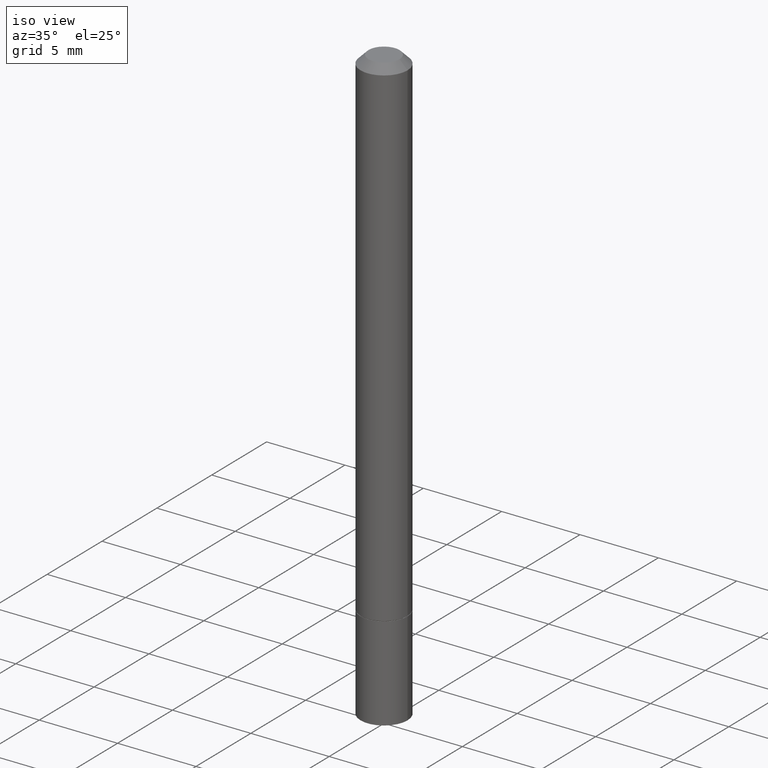
[diagram: clean part render]
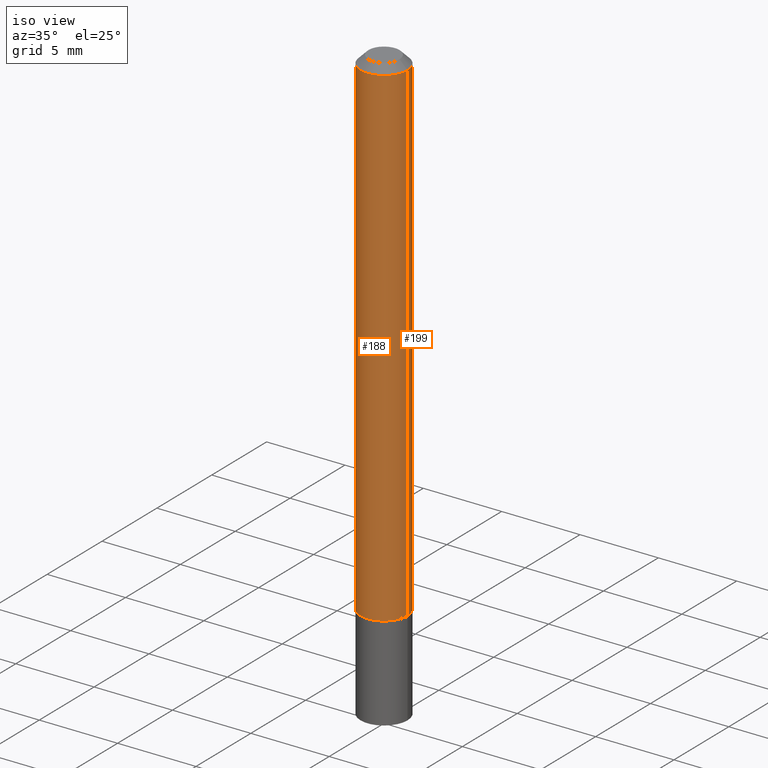
[diagram: same view with one multi-face feature highlighted, each face labeled with its STEP entity id]
A machine part, iso view. The highlighted faces form ONE feature: a constant-radius fillet chain: 2 tangent blend faces with common blend radius 1.4999 mm. The faces share edges in the B-rep.
Their STEP definitions:
[1] entity #199 (Cylinder):
#2 = LINE ( 'NONE', #210, #67 ) ;
#6 = FACE_OUTER_BOUND ( 'NONE', #213, .T. ) ;
#11 = CIRCLE ( 'NONE', #121, 0.05904999999999988036 ) ;
#23 = CARTESIAN_POINT ( 'NONE',  ( -0.05905000000000001914, -1.813052256656907407E-15, -1.258899999999999686 ) ) ;
#29 = CARTESIAN_POINT ( 'NONE',  ( 3.078600680106467904E-29, -4.395425857469635235E-15, -1.258899999999999686 ) ) ;
#32 = DIRECTION ( 'NONE',  ( -2.445468806185136597E-29, 3.491481338843145583E-15, 1.000000000000000000 ) ) ;
#36 = DIRECTION ( 'NONE',  ( -2.445468806185136877E-29, 3.491481338843145188E-15, 1.000000000000000000 ) ) ;
#47 = EDGE_CURVE ( 'NONE', #365, #326, #2, .T. ) ;
#57 = LINE ( 'NONE', #168, #105 ) ;
#67 = VECTOR ( 'NONE', #262, 39.37007874015748143 ) ;
#89 = CARTESIAN_POINT ( 'NONE',  ( 0.05905000000000001914, -4.807769803587009366E-15, -1.258899999999999686 ) ) ;
#105 = VECTOR ( 'NONE', #36, 39.37007874015748143 ) ;
#111 = CARTESIAN_POINT ( 'NONE',  ( -0.05904999999999988036, 3.425143193405099949E-16, -0.02000000000000007674 ) ) ;
#118 = DIRECTION ( 'NONE',  ( -2.445468806185136597E-29, 3.491481338843145583E-15, 1.000000000000000000 ) ) ;
#121 = AXIS2_PLACEMENT_3D ( 'NONE', #344, #118, #335 ) ;
#137 = CARTESIAN_POINT ( 'NONE',  ( 0.05904999999999988036, -4.749420335452712790E-16, -0.02000000000000007674 ) ) ;
#143 = DIRECTION ( 'NONE',  ( 1.000000000000000000, -6.982962677686270655E-15, 0.000000000000000000 ) ) ;
#166 = CARTESIAN_POINT ( 'NONE',  ( 0.000000000000000000, 0.000000000000000000, 0.000000000000000000 ) ) ;
#167 = ORIENTED_EDGE ( 'NONE', *, *, #327, .F. ) ;
#168 = CARTESIAN_POINT ( 'NONE',  ( -0.05904999999999994975, 4.195754854663388027E-16, -2.904631170795519440E-30 ) ) ;
#170 = AXIS2_PLACEMENT_3D ( 'NONE', #166, #32, #345 ) ;
#183 = VERTEX_POINT ( 'NONE', #23 ) ;
#191 = ORIENTED_EDGE ( 'NONE', *, *, #47, .F. ) ;
#199 = ADVANCED_FACE ( 'NONE', ( #6 ), #219, .T. ) ;
#201 = CIRCLE ( 'NONE', #243, 0.05905000000000001914 ) ;
#210 = CARTESIAN_POINT ( 'NONE',  ( 0.05904999999999994975, -4.123439461173736876E-16, 2.879382386107497418E-30 ) ) ;
#211 = EDGE_CURVE ( 'NONE', #365, #183, #201, .T. ) ;
#213 = EDGE_LOOP ( 'NONE', ( #304, #242, #167, #191 ) ) ;
#219 = CYLINDRICAL_SURFACE ( 'NONE', #170, 0.05904999999999994975 ) ;
#242 = ORIENTED_EDGE ( 'NONE', *, *, #364, .T. ) ;
#243 = AXIS2_PLACEMENT_3D ( 'NONE', #29, #256, #143 ) ;
#256 = DIRECTION ( 'NONE',  ( -2.445468806185136597E-29, 3.491481338843145583E-15, 1.000000000000000000 ) ) ;
#262 = DIRECTION ( 'NONE',  ( -2.445468806185136877E-29, 3.491481338843145188E-15, 1.000000000000000000 ) ) ;
#304 = ORIENTED_EDGE ( 'NONE', *, *, #211, .T. ) ;
#307 = VERTEX_POINT ( 'NONE', #111 ) ;
#326 = VERTEX_POINT ( 'NONE', #137 ) ;
#327 = EDGE_CURVE ( 'NONE', #326, #307, #11, .T. ) ;
#335 = DIRECTION ( 'NONE',  ( 1.000000000000000000, -6.982962677686266711E-15, 0.000000000000000000 ) ) ;
#344 = CARTESIAN_POINT ( 'NONE',  ( 4.890937612370292426E-31, -6.982962677686317493E-17, -0.02000000000000007674 ) ) ;
#345 = DIRECTION ( 'NONE',  ( 1.000000000000000000, -6.982962677686266711E-15, 4.876176775795935232E-29 ) ) ;
#364 = EDGE_CURVE ( 'NONE', #183, #307, #57, .T. ) ;
#365 = VERTEX_POINT ( 'NONE', #89 ) ;
[2] entity #188 (Cylinder):
#2 = LINE ( 'NONE', #210, #67 ) ;
#5 = CYLINDRICAL_SURFACE ( 'NONE', #20, 0.05904999999999994975 ) ;
#7 = DIRECTION ( 'NONE',  ( -2.445468806185136597E-29, 3.491481338843145583E-15, 1.000000000000000000 ) ) ;
#18 = EDGE_CURVE ( 'NONE', #307, #326, #309, .T. ) ;
#20 = AXIS2_PLACEMENT_3D ( 'NONE', #164, #113, #62 ) ;
#23 = CARTESIAN_POINT ( 'NONE',  ( -0.05905000000000001914, -1.813052256656907407E-15, -1.258899999999999686 ) ) ;
#36 = DIRECTION ( 'NONE',  ( -2.445468806185136877E-29, 3.491481338843145188E-15, 1.000000000000000000 ) ) ;
#47 = EDGE_CURVE ( 'NONE', #365, #326, #2, .T. ) ;
#57 = LINE ( 'NONE', #168, #105 ) ;
#59 = DIRECTION ( 'NONE',  ( 1.000000000000000000, -6.982962677686266711E-15, 0.000000000000000000 ) ) ;
#60 = AXIS2_PLACEMENT_3D ( 'NONE', #336, #7, #59 ) ;
#62 = DIRECTION ( 'NONE',  ( 1.000000000000000000, -6.982962677686266711E-15, 4.876176775795935232E-29 ) ) ;
#64 = EDGE_CURVE ( 'NONE', #183, #365, #124, .T. ) ;
#67 = VECTOR ( 'NONE', #262, 39.37007874015748143 ) ;
#89 = CARTESIAN_POINT ( 'NONE',  ( 0.05905000000000001914, -4.807769803587009366E-15, -1.258899999999999686 ) ) ;
#92 = CARTESIAN_POINT ( 'NONE',  ( 3.078600680106467904E-29, -4.395425857469635235E-15, -1.258899999999999686 ) ) ;
#96 = DIRECTION ( 'NONE',  ( 1.000000000000000000, -6.982962677686270655E-15, 0.000000000000000000 ) ) ;
#104 = AXIS2_PLACEMENT_3D ( 'NONE', #92, #206, #96 ) ;
#105 = VECTOR ( 'NONE', #36, 39.37007874015748143 ) ;
#111 = CARTESIAN_POINT ( 'NONE',  ( -0.05904999999999988036, 3.425143193405099949E-16, -0.02000000000000007674 ) ) ;
#113 = DIRECTION ( 'NONE',  ( -2.445468806185136597E-29, 3.491481338843145583E-15, 1.000000000000000000 ) ) ;
#124 = CIRCLE ( 'NONE', #104, 0.05905000000000001914 ) ;
#137 = CARTESIAN_POINT ( 'NONE',  ( 0.05904999999999988036, -4.749420335452712790E-16, -0.02000000000000007674 ) ) ;
#164 = CARTESIAN_POINT ( 'NONE',  ( 0.000000000000000000, 0.000000000000000000, 0.000000000000000000 ) ) ;
#168 = CARTESIAN_POINT ( 'NONE',  ( -0.05904999999999994975, 4.195754854663388027E-16, -2.904631170795519440E-30 ) ) ;
#183 = VERTEX_POINT ( 'NONE', #23 ) ;
#186 = ORIENTED_EDGE ( 'NONE', *, *, #18, .F. ) ;
#188 = ADVANCED_FACE ( 'NONE', ( #241 ), #5, .T. ) ;
#206 = DIRECTION ( 'NONE',  ( -2.445468806185136597E-29, 3.491481338843145583E-15, 1.000000000000000000 ) ) ;
#210 = CARTESIAN_POINT ( 'NONE',  ( 0.05904999999999994975, -4.123439461173736876E-16, 2.879382386107497418E-30 ) ) ;
#217 = ORIENTED_EDGE ( 'NONE', *, *, #64, .T. ) ;
#241 = FACE_OUTER_BOUND ( 'NONE', #312, .T. ) ;
#262 = DIRECTION ( 'NONE',  ( -2.445468806185136877E-29, 3.491481338843145188E-15, 1.000000000000000000 ) ) ;
#280 = ORIENTED_EDGE ( 'NONE', *, *, #47, .T. ) ;
#307 = VERTEX_POINT ( 'NONE', #111 ) ;
#309 = CIRCLE ( 'NONE', #60, 0.05904999999999988036 ) ;
#312 = EDGE_LOOP ( 'NONE', ( #361, #217, #280, #186 ) ) ;
#326 = VERTEX_POINT ( 'NONE', #137 ) ;
#336 = CARTESIAN_POINT ( 'NONE',  ( 4.890937612370292426E-31, -6.982962677686317493E-17, -0.02000000000000007674 ) ) ;
#361 = ORIENTED_EDGE ( 'NONE', *, *, #364, .F. ) ;
#364 = EDGE_CURVE ( 'NONE', #183, #307, #57, .T. ) ;
#365 = VERTEX_POINT ( 'NONE', #89 ) ;